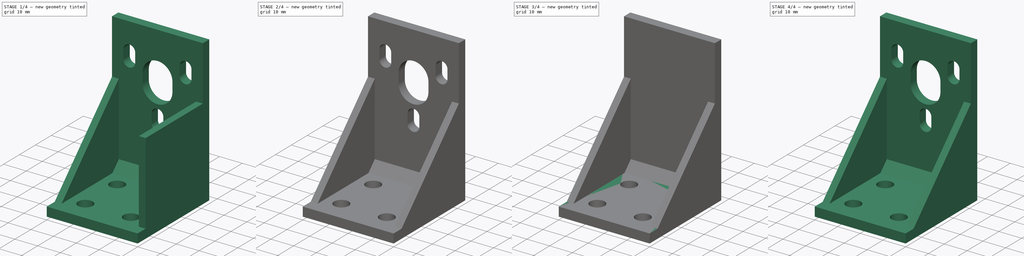
[diagram: build sequence overview — one tinted view per stage of 4, left to right]
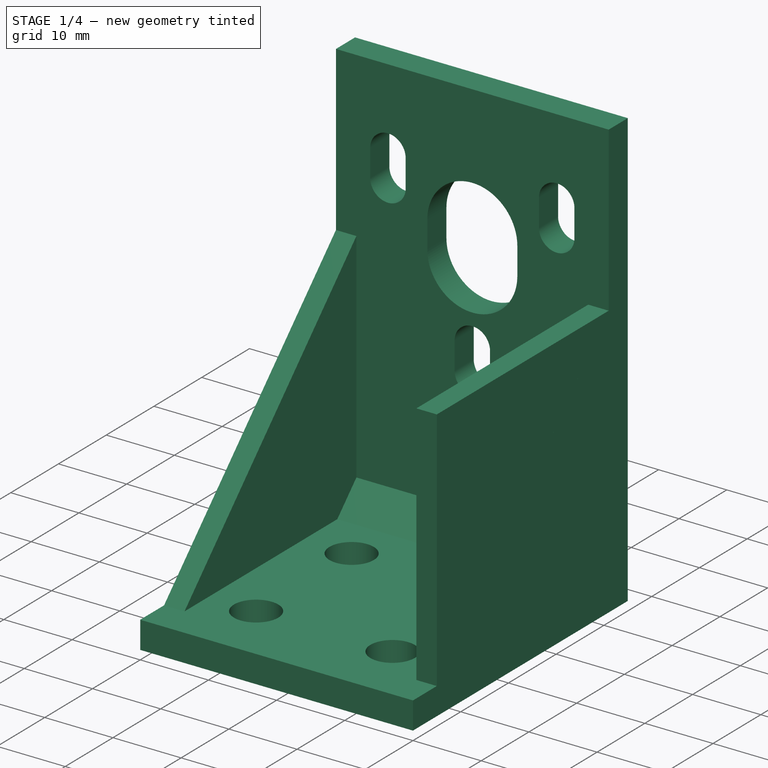
[diagram: stage 1 of 4 — iso view after this stage's code; geometry added in this stage tinted green]
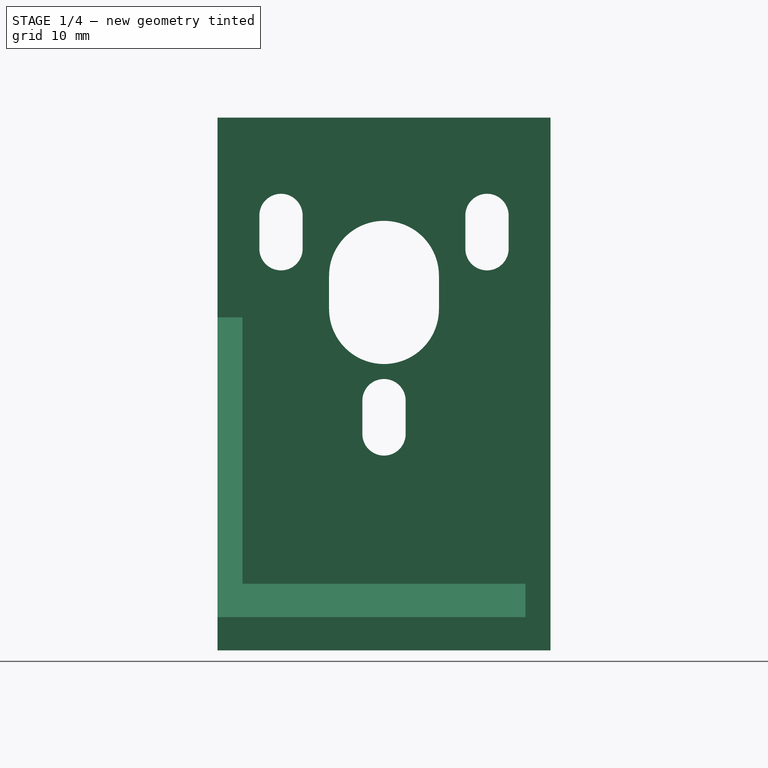
[diagram: stage 1 of 4 — front view after this stage's code; geometry added in this stage tinted green]
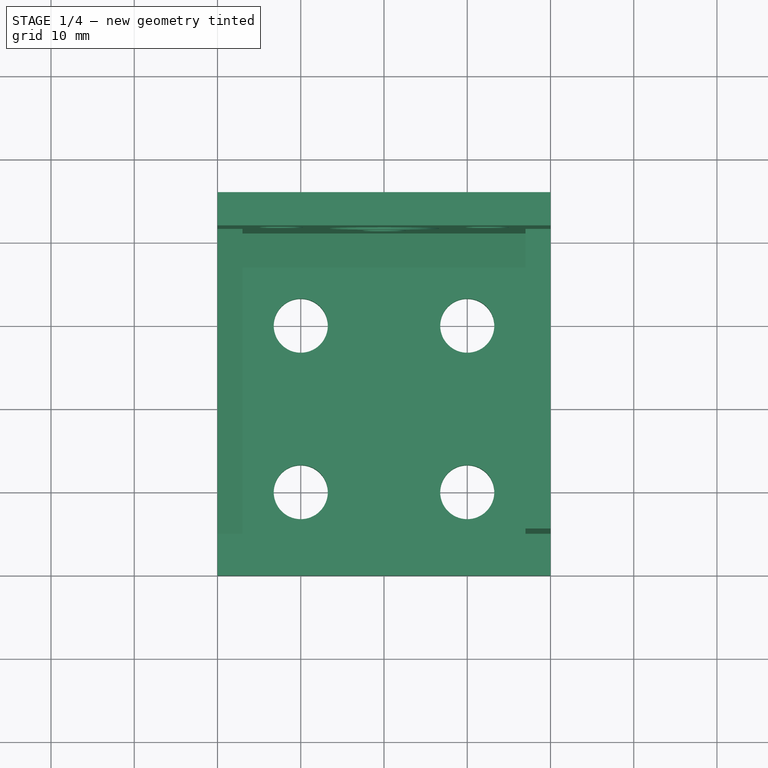
[diagram: stage 1 of 4 — top view after this stage's code; geometry added in this stage tinted green]
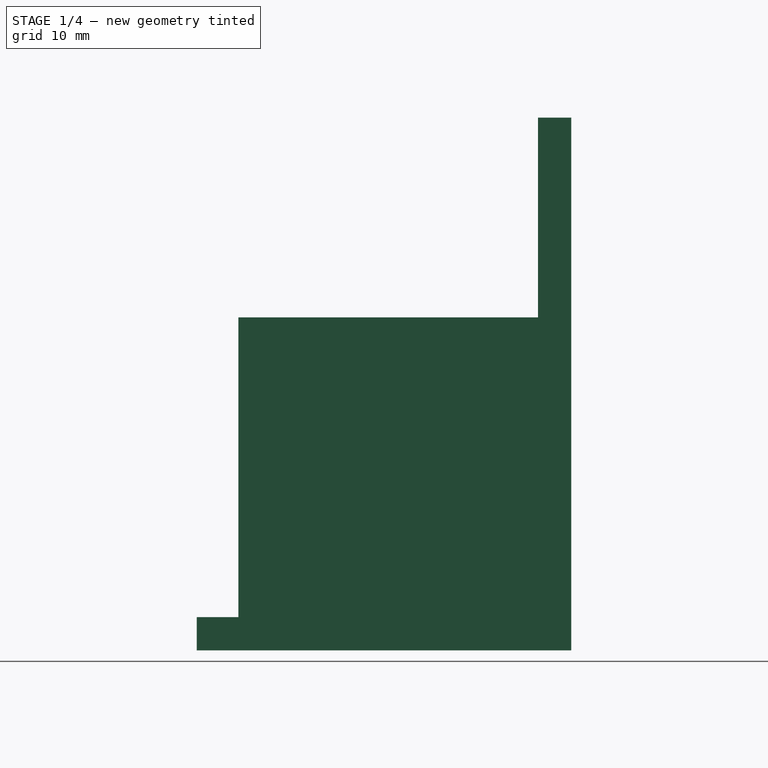
[diagram: stage 1 of 4 — right view after this stage's code; geometry added in this stage tinted green]
FCSTD DOCUMENT  (FreeCAD 0.15R4671 (Git))
Label: ArmPlateFlangeMount
License: CC-BY 3.0
LicenseURL: http://creativecommons.org/licenses/by/3.0/
objects: Sketcher::SketchObject×6, PartDesign::Pocket×4, PartDesign::Pad×2, Part::Box×2, Part::MultiFuse×1, Part::Feature×1, PartDesign::Chamfer×1
note: 23 computed .brp shape members not serialized (recipe doc carries the construction recipe); baked Part::Feature solids carry a one-line shape summary decoded from their .brp

FEATURE [Part::Box] Box001  label="Cube001"
  Height = 40
  Length = 3
  Placement = pos=(37,5,0) rot=(0,0,1;0rad)
  Width = 40
FEATURE [Part::Feature] Fusion001
  shape: bbox 40 x 45 x 64 mm, 32 faces (baked)
FEATURE [PartDesign::Chamfer] Chamfer
  Base = -> Fusion001 [Edge8]
  Size = 4
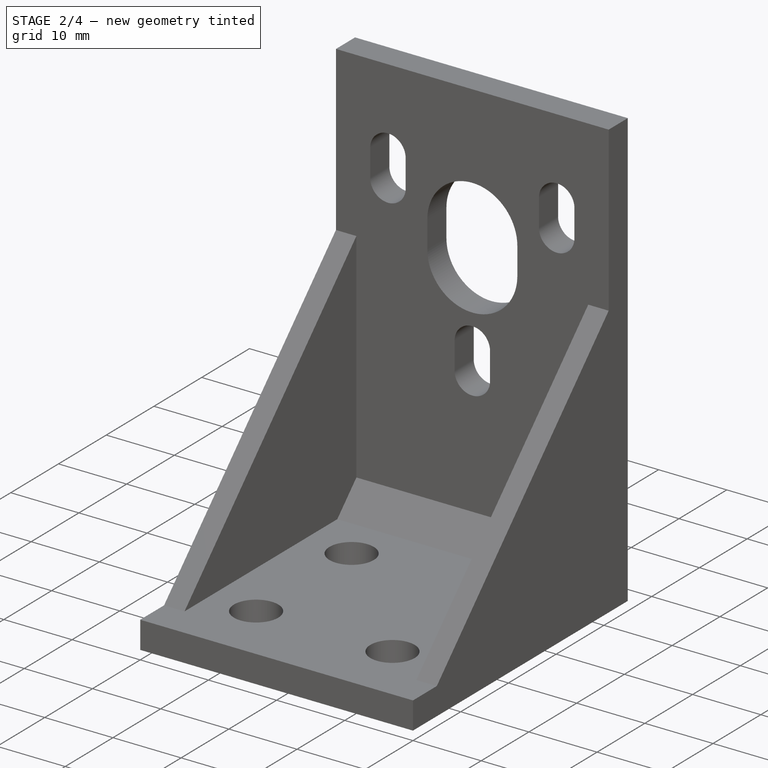
[diagram: stage 2 of 4 — iso view after this stage's code; geometry added in this stage tinted green]
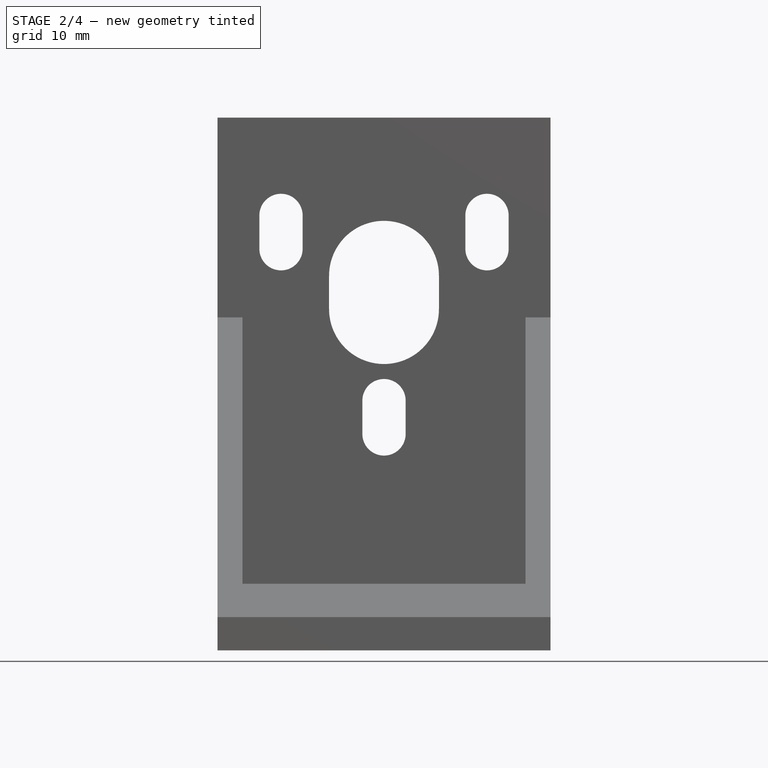
[diagram: stage 2 of 4 — front view after this stage's code; geometry added in this stage tinted green]
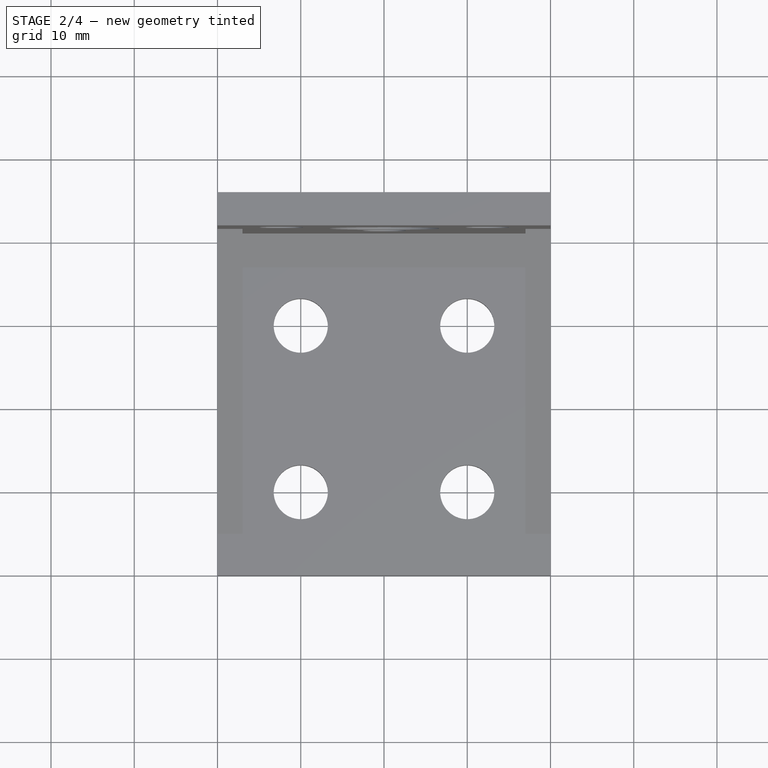
[diagram: stage 2 of 4 — top view after this stage's code; geometry added in this stage tinted green]
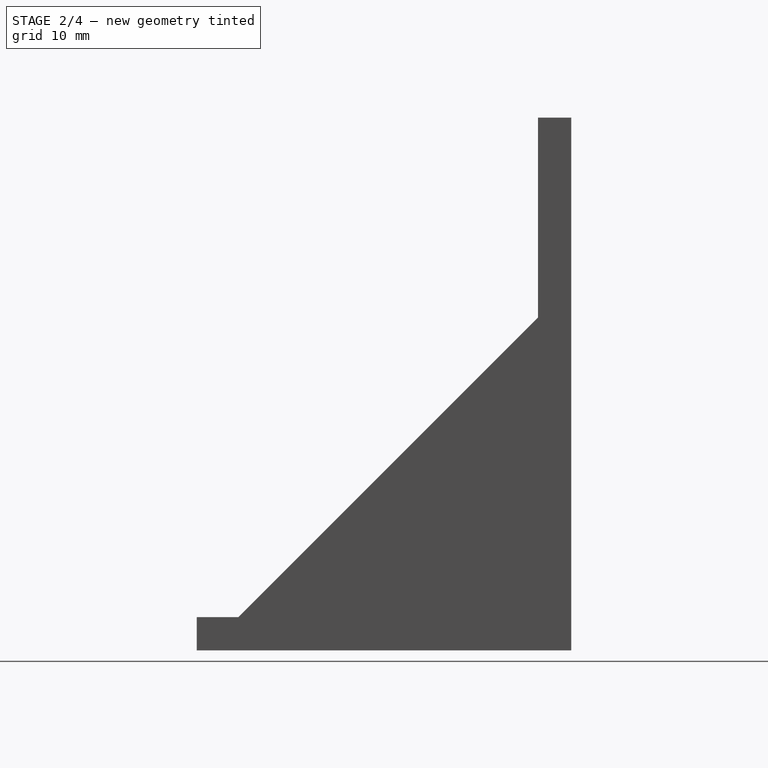
[diagram: stage 2 of 4 — right view after this stage's code; geometry added in this stage tinted green]
FEATURE [Part::Box] Box  label="Cube"
  Height = 40
  Length = 3
  Placement = pos=(0,5,0) rot=(0,0,1;0rad)
  Width = 40
FEATURE [Sketcher::SketchObject] Sketch005
  Placement = pos=(0,5,0) rot=(0.57735,-0.57735,-0.57735;2.0944rad)
  Support = -> Box [Face1]
  sketch-geometry (3):
    g0: LineSegment StartX=-36 StartY=40 StartZ=0 EndX=0 EndY=4 EndZ=0
    g1: LineSegment StartX=-36 StartY=40 StartZ=0 EndX=0 EndY=40 EndZ=0
    g2: LineSegment StartX=0 StartY=40 StartZ=0 EndX=0 EndY=4 EndZ=0
  constraints (9):
    c: PointOnObject(g0,g-2)
    c: DistanceY(g-1,g0) = 40
    c: DistanceX(g-1,g0) = -36
    c: DistanceY(g-1,g0) = 4
    c: Coincident(g1,g0)
    c: PointOnObject(g1,g-2)
    c: Horizontal(g1)
    c: Coincident(g2,g1)
    c: Coincident(g2,g0)
FEATURE [PartDesign::Pocket] Pocket002
  Length = 5
  Placement = pos=(0,5,0) rot=(0,0,1;0rad)
  Sketch = -> Sketch005
  Type = 1
FEATURE [Sketcher::SketchObject] Sketch006
  Placement = pos=(40,5,0) rot=(0.57735,0.57735,0.57735;2.0944rad)
  Support = -> Box001 [Face2]
  sketch-geometry (3):
    g0: LineSegment StartX=36 StartY=40 StartZ=0 EndX=0 EndY=4 EndZ=0
    g1: LineSegment StartX=0 StartY=4 StartZ=0 EndX=0 EndY=40 EndZ=0
    g2: LineSegment StartX=0 StartY=40 StartZ=0 EndX=36 EndY=40 EndZ=0
  constraints (9):
    c: Coincident(g0,g1)
    c: PointOnObject(g1,g-2)
    c: Vertical(g1)
    c: Coincident(g1,g2)
    c: Coincident(g2,g0)
    c: Horizontal(g2)
    c: DistanceY(g-1,g0) = 4
    c: DistanceX(g-1,g0) = 36
    c: DistanceY(g-1,g0) = 40
FEATURE [PartDesign::Pocket] Pocket003
  Length = 5
  Placement = pos=(37,5,0) rot=(0,0,1;0rad)
  Sketch = -> Sketch006
  Type = 1
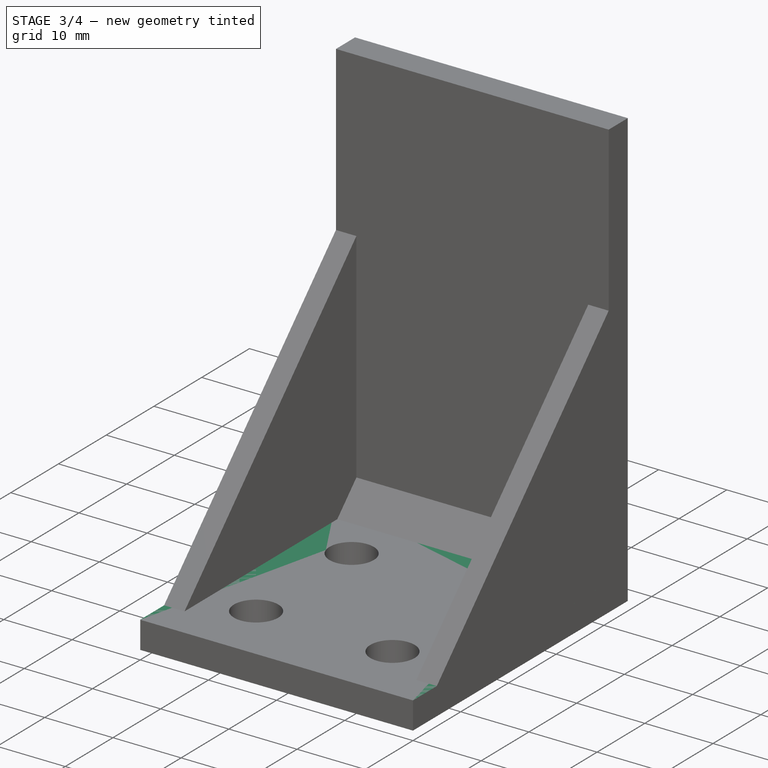
[diagram: stage 3 of 4 — iso view after this stage's code; geometry added in this stage tinted green]
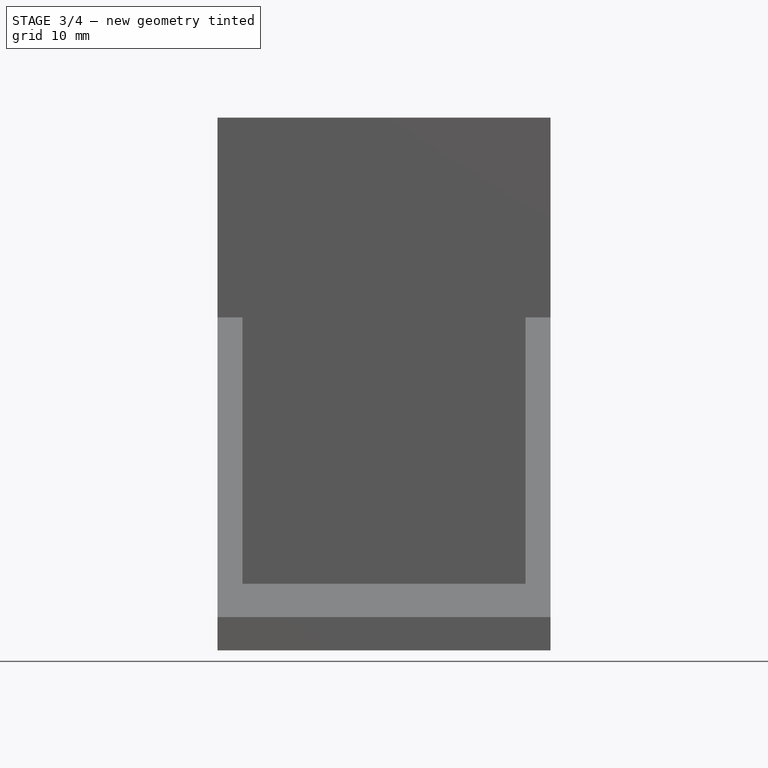
[diagram: stage 3 of 4 — front view after this stage's code; geometry added in this stage tinted green]
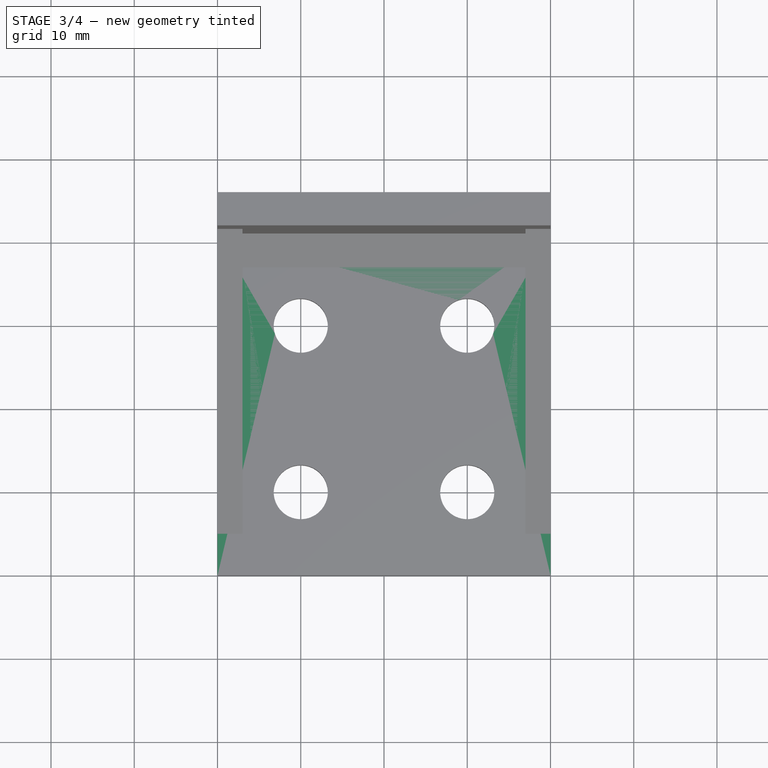
[diagram: stage 3 of 4 — top view after this stage's code; geometry added in this stage tinted green]
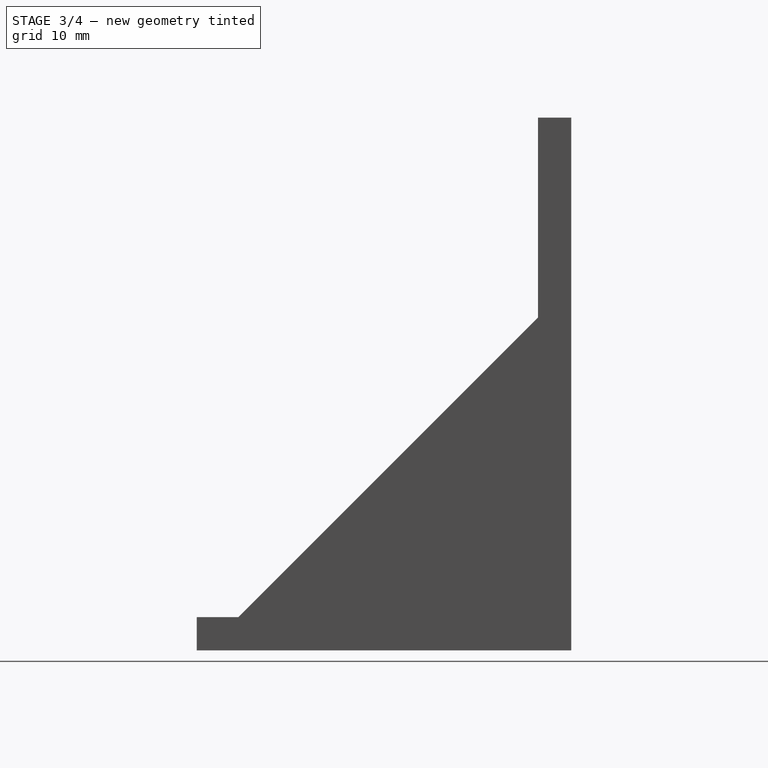
[diagram: stage 3 of 4 — right view after this stage's code; geometry added in this stage tinted green]
FEATURE [Sketcher::SketchObject] Sketch
  sketch-geometry (4):
    g0: LineSegment StartX=0 StartY=0 StartZ=0 EndX=40 EndY=0 EndZ=0
    g1: LineSegment StartX=40 StartY=0 StartZ=0 EndX=40 EndY=45 EndZ=0
    g2: LineSegment StartX=40 StartY=45 StartZ=0 EndX=0 EndY=45 EndZ=0
    g3: LineSegment StartX=0 StartY=45 StartZ=0 EndX=0 EndY=0 EndZ=0
  constraints (12):
    c: Coincident(g0,g1)
    c: Coincident(g1,g2)
    c: Coincident(g2,g3)
    c: Coincident(g3,g0)
    c: Horizontal(g0)
    c: Horizontal(g2)
    c: Vertical(g1)
    c: Vertical(g3)
    c: DistanceY(g3) = -45
    c: PointOnObject(g0,g-2)
    c: PointOnObject(g0,g-1)
    c: DistanceX(g0) = 40
FEATURE [PartDesign::Pad] Pad
  Length = 4
  Length2 = 100
  Sketch = -> Sketch
  Type = 0
FEATURE [Sketcher::SketchObject] Sketch001
  Placement = pos=(0,0,4) rot=(0,0,1;0rad)
  Support = -> Pad [Face6]
  sketch-geometry (4):
    g0: Circle CenterX=10 CenterY=30 CenterZ=0 NormalX=0 NormalY=0 NormalZ=1 Radius=3.25
    g1: Circle CenterX=30 CenterY=30 CenterZ=0 NormalX=0 NormalY=0 NormalZ=1 Radius=3.25
    g2: Circle CenterX=10 CenterY=10 CenterZ=0 NormalX=0 NormalY=0 NormalZ=1 Radius=3.25
    g3: Circle CenterX=30 CenterY=10 CenterZ=0 NormalX=0 NormalY=0 NormalZ=1 Radius=3.25
  constraints (12):
    c: DistanceY(g0,g1) = 0
    c: Radius(g1) = 3.25
    c: Equal(g1,g0)
    c: Equal(g0,g2)
    c: Equal(g2,g3)
    c: DistanceX(g0,g2) = 0
    c: DistanceY(g2,g0) = 20
    c: DistanceY(g3,g2) = 0
    c: DistanceX(g3,g2) = -20
    c: DistanceX(g1,g3) = 0
    c: DistanceX(g-1,g2) = 10
    c: DistanceY(g-1,g2) = 10
FEATURE [PartDesign::Pocket] Pocket
  Length = 0
  Sketch = -> Sketch001
  Type = 1
FEATURE [Sketcher::SketchObject] Sketch003
  ExternalGeometry = -> [Pocket]
  Placement = pos=(0,0,4) rot=(0,0,1;0rad)
  Support = -> Pocket [Face5]
  sketch-geometry (4):
    g0: LineSegment StartX=0 StartY=45 StartZ=0 EndX=40 EndY=45 EndZ=0
    g1: LineSegment StartX=40 StartY=45 StartZ=0 EndX=40 EndY=41 EndZ=0
    g2: LineSegment StartX=40 StartY=41 StartZ=0 EndX=0 EndY=41 EndZ=0
    g3: LineSegment StartX=0 StartY=41 StartZ=0 EndX=0 EndY=45 EndZ=0
  constraints (11):
    c: Coincident(g0,g1)
    c: Coincident(g1,g2)
    c: Coincident(g2,g3)
    c: Coincident(g3,g0)
    c: Horizontal(g0)
    c: Horizontal(g2)
    c: Vertical(g1)
    c: Vertical(g3)
    c: Coincident(g0,g-3)
    c: DistanceY(g3) = 4
    c: Coincident(g0,g-3)
FEATURE [PartDesign::Pad] Pad001
  Length = 60
  Length2 = 100
  Sketch = -> Sketch003
  Type = 0
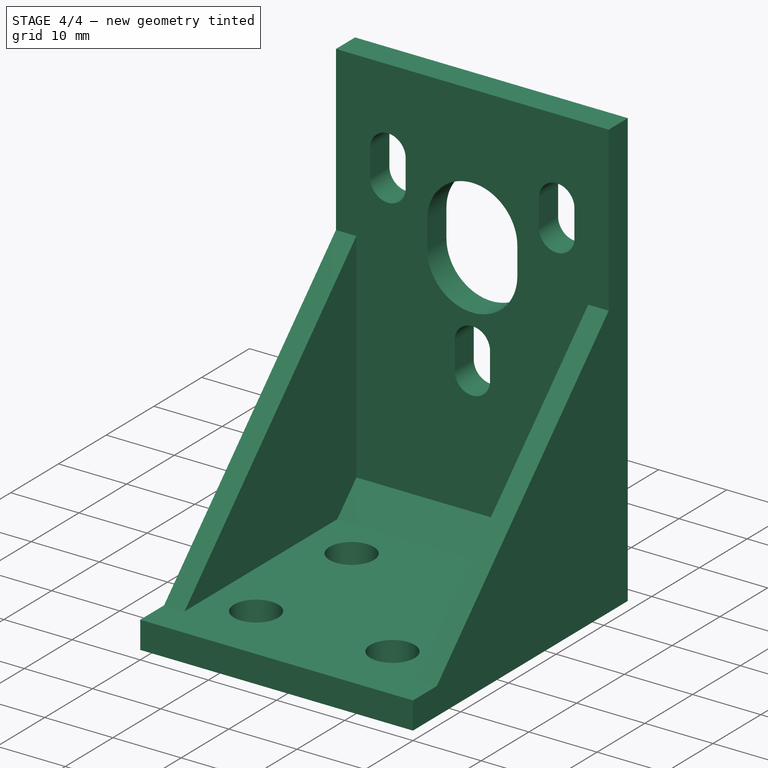
[diagram: stage 4 of 4 — iso view after this stage's code; geometry added in this stage tinted green]
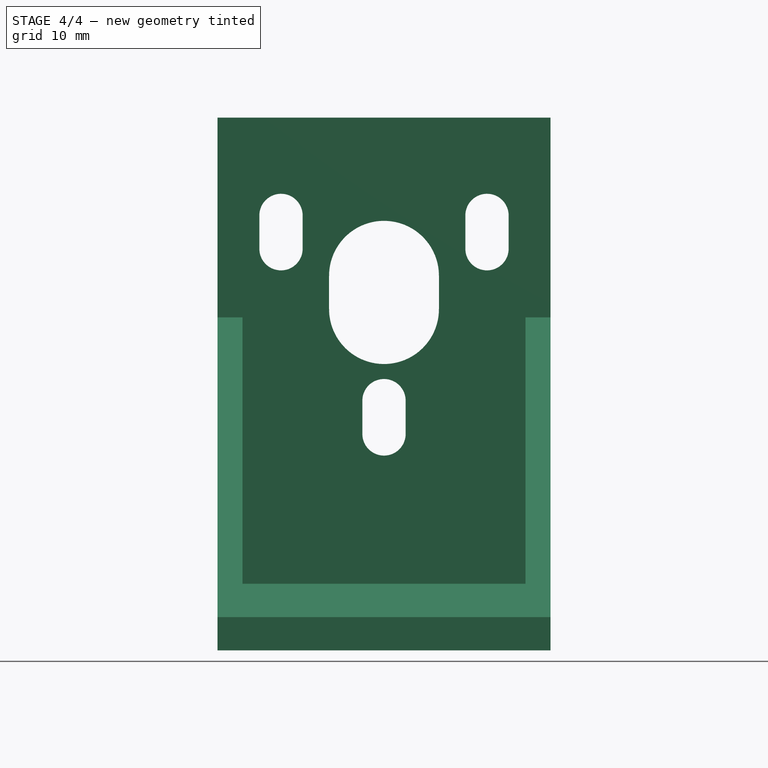
[diagram: stage 4 of 4 — front view after this stage's code; geometry added in this stage tinted green]
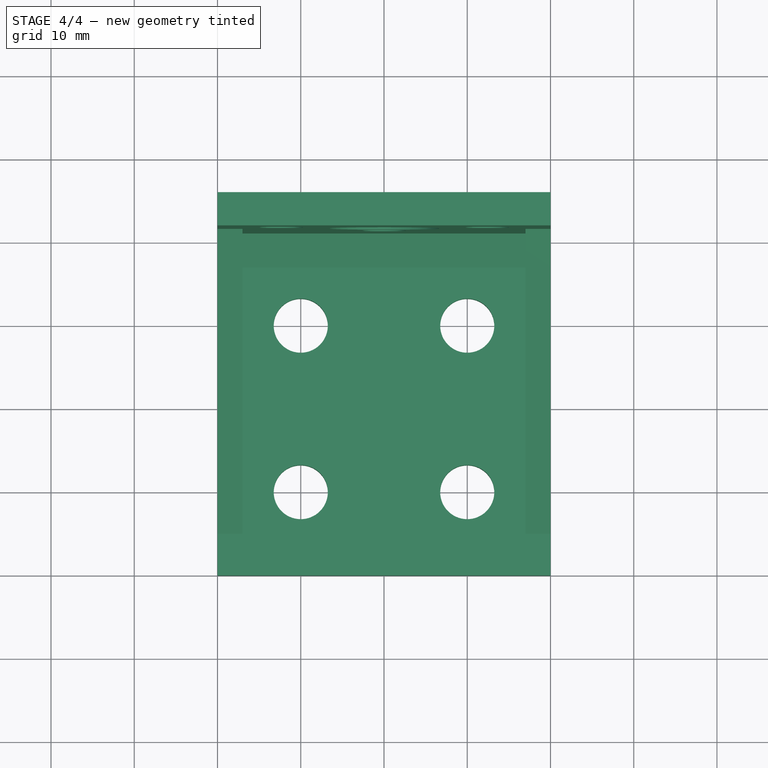
[diagram: stage 4 of 4 — top view after this stage's code; geometry added in this stage tinted green]
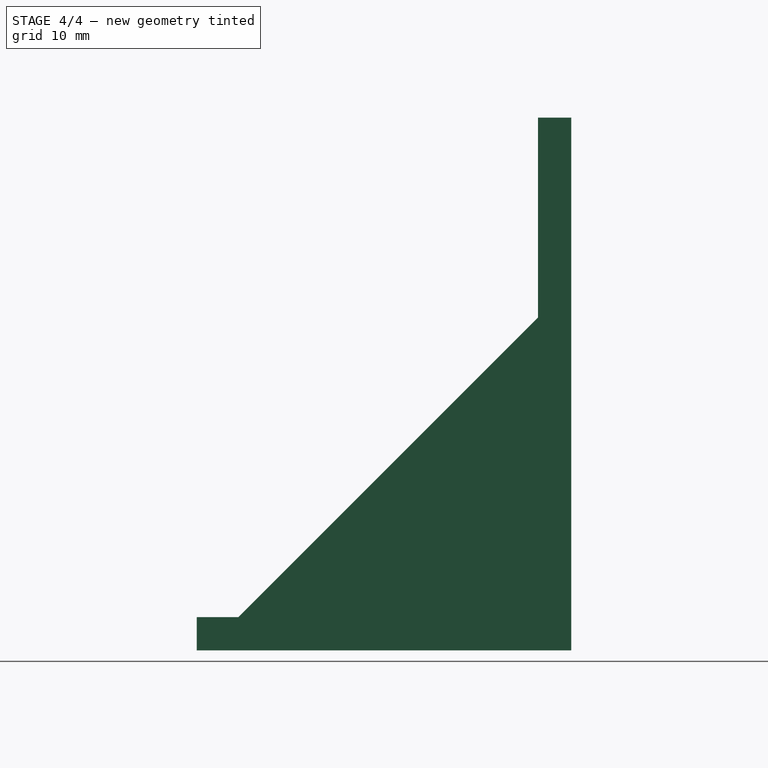
[diagram: stage 4 of 4 — right view after this stage's code; geometry added in this stage tinted green]
FEATURE [Sketcher::SketchObject] Sketch004
  Placement = pos=(0,41,0) rot=(1,0,0;1.5708rad)
  Support = -> Pad001 [Face13]
  sketch-geometry (16):
    g0: ArcOfCircle CenterX=7.6265 CenterY=52.25 CenterZ=0 NormalX=0 NormalY=0 NormalZ=1 Radius=2.6 StartAngle=6.28319 EndAngle=9.42478
    g1: ArcOfCircle CenterX=7.6265 CenterY=48.25 CenterZ=0 NormalX=0 NormalY=0 NormalZ=1 Radius=2.6 StartAngle=3.14159 EndAngle=6.28319
    g2: LineSegment StartX=5.0265 StartY=52.25 StartZ=0 EndX=5.0265 EndY=48.25 EndZ=0
    g3: LineSegment StartX=10.2265 StartY=52.25 StartZ=0 EndX=10.2265 EndY=48.25 EndZ=0
    g4: ArcOfCircle CenterX=32.3735 CenterY=52.25 CenterZ=0 NormalX=0 NormalY=0 NormalZ=1 Radius=2.6 StartAngle=6.28319 EndAngle=9.42478
    g5: ArcOfCircle CenterX=32.3735 CenterY=48.25 CenterZ=0 NormalX=0 NormalY=0 NormalZ=1 Radius=2.6 StartAngle=3.14159 EndAngle=6.28319
    g6: LineSegment StartX=29.7735 StartY=52.25 StartZ=0 EndX=29.7735 EndY=48.25 EndZ=0
    g7: LineSegment StartX=34.9735 StartY=52.25 StartZ=0 EndX=34.9735 EndY=48.25 EndZ=0
    g8: ArcOfCircle CenterX=20 CenterY=45 CenterZ=0 NormalX=0 NormalY=0 NormalZ=1 Radius=6.6 StartAngle=0 EndAngle=3.14159
    g9: LineSegment StartX=26.6 StartY=45 StartZ=0 EndX=26.6 EndY=41 EndZ=0
    g10: LineSegment StartX=13.4 StartY=41 StartZ=0 EndX=13.4 EndY=45 EndZ=0
    g11: ArcOfCircle CenterX=20 CenterY=41 CenterZ=0 NormalX=0 NormalY=0 NormalZ=1 Radius=6.6 StartAngle=3.14159 EndAngle=6.28319
    g12: ArcOfCircle CenterX=20 CenterY=30 CenterZ=0 NormalX=0 NormalY=0 NormalZ=1 Radius=2.6 StartAngle=8.361e-08 EndAngle=3.14159
    g13: ArcOfCircle CenterX=20 CenterY=26 CenterZ=0 NormalX=0 NormalY=0 NormalZ=1 Radius=2.6 StartAngle=3.14159 EndAngle=6.28319
    g14: LineSegment StartX=17.4 StartY=30 StartZ=0 EndX=17.4 EndY=26 EndZ=0
    g15: LineSegment StartX=22.6 StartY=30 StartZ=0 EndX=22.6 EndY=26 EndZ=0
  constraints (55):
    c: Tangent(g0,g2)
    c: Tangent(g0,g3)
    c: Tangent(g1,g2)
    c: Tangent(g1,g3)
    c: Coincident(g0,g3)
    c: Coincident(g0,g2)
    c: Coincident(g2,g1)
    c: Coincident(g3,g1)
    c: Vertical(g2)
    c: Equal(g0,g1)
    c: Tangent(g4,g6)
    c: Tangent(g4,g7)
    c: Tangent(g5,g6)
    c: Tangent(g5,g7)
    c: Coincident(g4,g7)
    c: Coincident(g4,g6)
    c: Coincident(g6,g5)
    c: Coincident(g7,g5)
    c: Vertical(g6)
    c: Equal(g4,g5)
    c: DistanceY(g0,g4) = 0
    c: DistanceY(g0,g1) = -4
    c: DistanceY(g5,g1) = 0
    c: Vertical(g9)
    c: Vertical(g10)
    c: Radius(g8) = 6.6
    c: DistanceX(g0,g4) = 24.747
    c: DistanceX(g-1,g8) = 20
    c: Radius(g5) = 2.6
    c: Equal(g5,g1)
    c: Coincident(g10,g8)
    c: Coincident(g9,g8)
    c: DistanceY(g8,g8) = 0
    c: DistanceY(g8,g8) = 0
    c: DistanceY(g9) = -4
    c: DistanceX(g0,g8) = 12.3735
    c: DistanceY(g-1,g8) = 45
    c: DistanceY(g4,g8) = -7.25
    c: Equal(g11,g8)
    c: Coincident(g11,g9)
    c: Coincident(g11,g10)
    c: Tangent(g12,g14)
    c: Tangent(g12,g15)
    c: Tangent(g13,g14)
    c: Tangent(g13,g15)
    c: Coincident(g12,g15)
    c: Coincident(g12,g14)
    c: Coincident(g14,g13)
    c: Coincident(g15,g13)
    c: Vertical(g14)
    c: Equal(g12,g13)
    c: Equal(g12,g1)
    c: DistanceX(g12,g11) = 0
    c: DistanceY(g11,g12) = -11
    c: DistanceY(g15) = -4
FEATURE [PartDesign::Pocket] Pocket001
  Length = 5
  Sketch = -> Sketch004
  Type = 1
FEATURE [Part::MultiFuse] Fusion
  Shapes = -> [Pocket003,Pocket002,Pocket001]
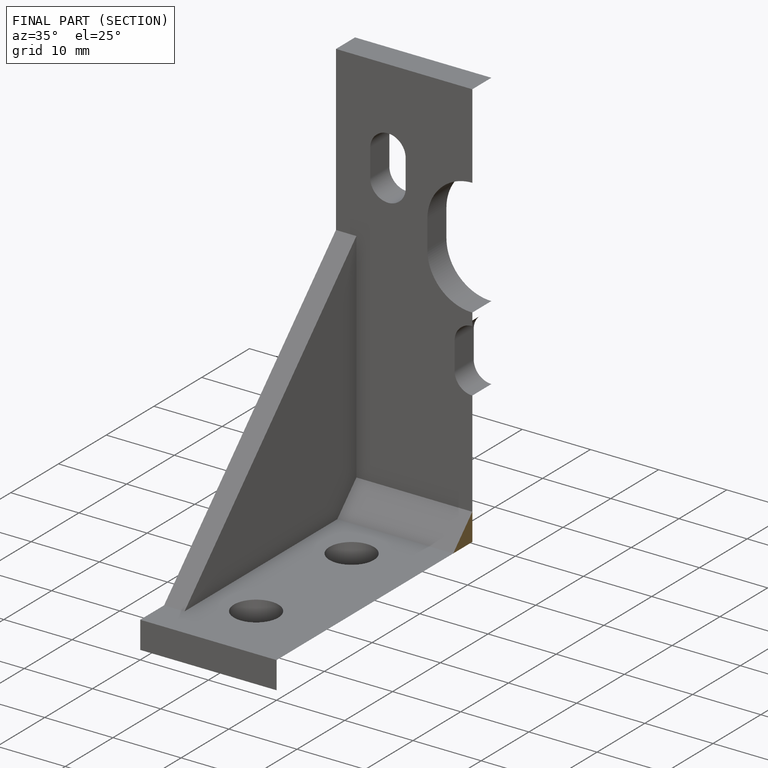
[diagram: finished part — half-section view (interior)]
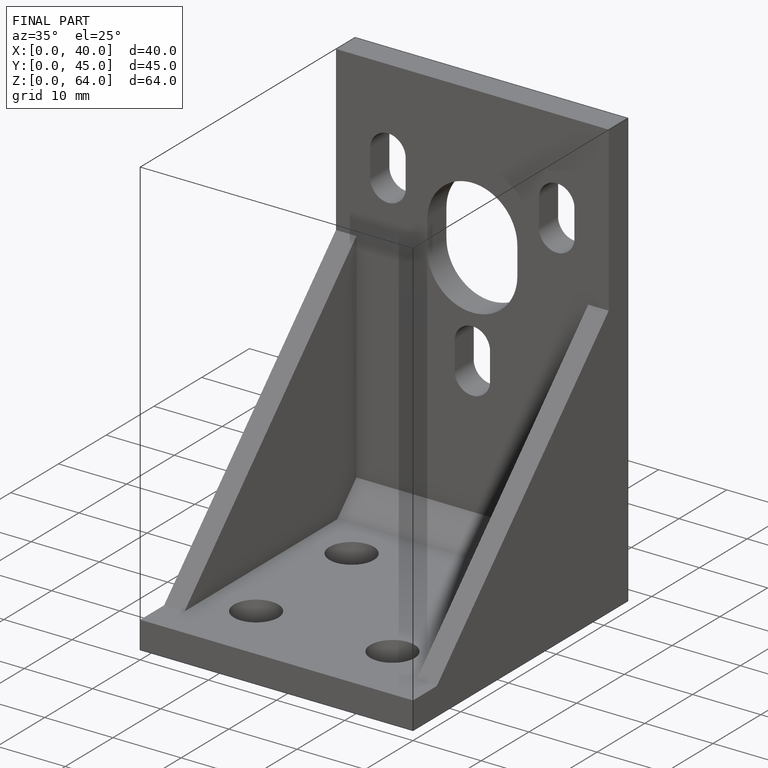
[diagram: finished part — iso view with bounding-box wireframe]
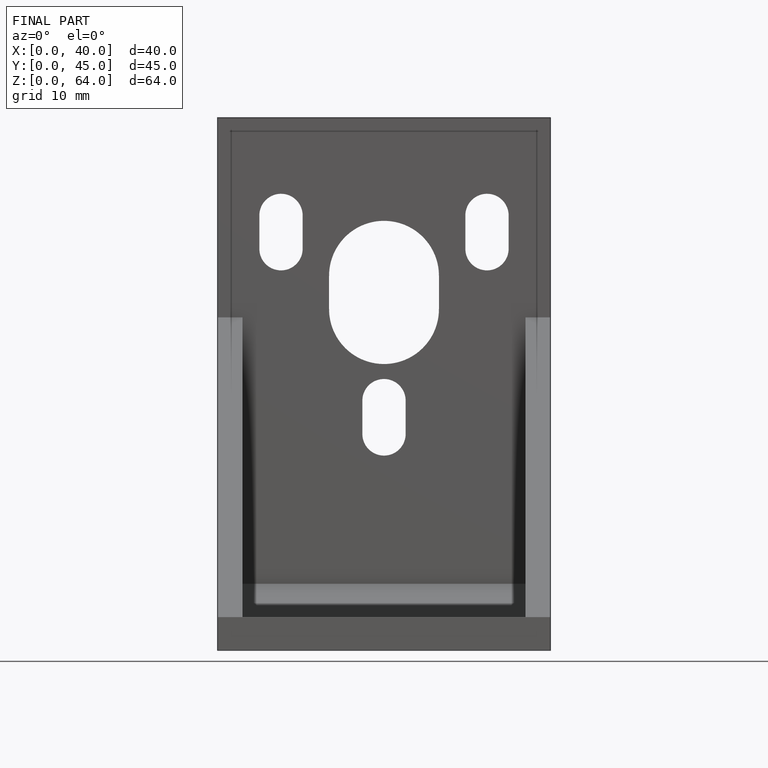
[diagram: finished part — front view with bounding-box wireframe]
